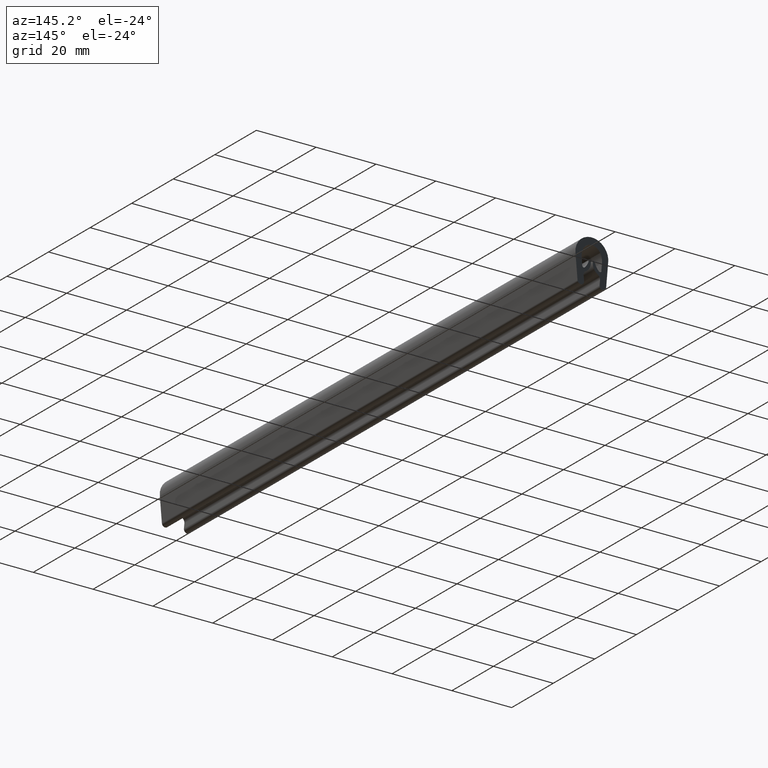
[diagram: clean part render]
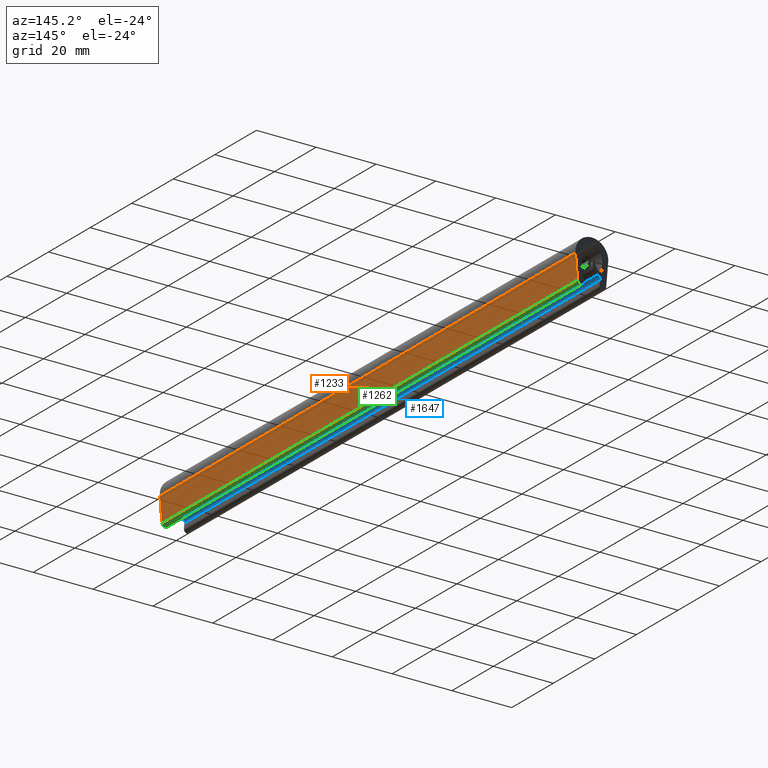
[diagram: same view with three faces highlighted in distinct colors, each labeled with its STEP entity id]
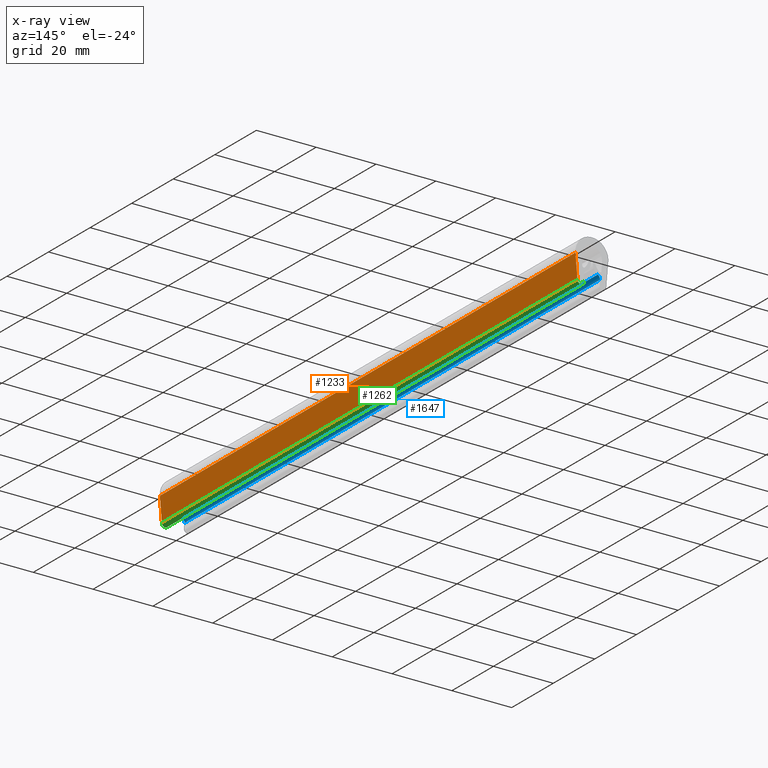
[diagram: x-ray of the same camera — body ghosted, the three highlighted faces saturated]
A machine part, auxiliary view with three faces highlighted in distinct colors.
The next image is the same camera in x-ray (body ghosted, the three faces saturated) — at least one of them is partly hidden behind the body in this view.
Their STEP definitions:

[orange] entity #1233 — the highlighted face is a freeform B-spline surface patch.
#755=CARTESIAN_POINT('',(4.782680216882080,0.0,-13.994669246972141));
#756=VERTEX_POINT('',#755);
#770=CARTESIAN_POINT('',(5.474783945414970,0.0,-5.967107423224420));
#771=VERTEX_POINT('',#770);
#772=CARTESIAN_POINT('',(4.782680216882080,0.0,-13.994669246972141));
#773=CARTESIAN_POINT('',(5.474783945414970,0.0,-5.967107423224420));
#774=QUASI_UNIFORM_CURVE('',1,(#772,#773),.UNSPECIFIED.,.F.,.U.);
#775=EDGE_CURVE('',#756,#771,#774,.T.);
#872=CARTESIAN_POINT('',(5.474783945414970,200.0,-5.967107423224420));
#873=VERTEX_POINT('',#872);
#894=CARTESIAN_POINT('',(4.782680216882080,200.0,-13.994669246972141));
#895=VERTEX_POINT('',#894);
#896=CARTESIAN_POINT('',(4.782680216882080,200.0,-13.994669246972141));
#897=CARTESIAN_POINT('',(5.474783945414970,200.0,-5.967107423224420));
#898=QUASI_UNIFORM_CURVE('',1,(#896,#897),.UNSPECIFIED.,.F.,.U.);
#899=EDGE_CURVE('',#895,#873,#898,.T.);
#1208=CARTESIAN_POINT('',(5.474783945414970,200.0,-5.967107423224420));
#1209=CARTESIAN_POINT('',(5.474783945414970,0.0,-5.967107423224420));
#1210=QUASI_UNIFORM_CURVE('',1,(#1208,#1209),.UNSPECIFIED.,.F.,.U.);
#1211=EDGE_CURVE('',#873,#771,#1210,.T.);
#1218=CARTESIAN_POINT('',(5.509354525313753,-9.989999612361183,-5.566130725687193));
#1219=CARTESIAN_POINT('',(4.748109618419628,-9.989999612361183,-14.395646159825359));
#1220=CARTESIAN_POINT('',(5.509354525313753,209.990004976779200,-5.566130725687193));
#1221=CARTESIAN_POINT('',(4.748109618419628,209.990004976779200,-14.395646159825359));
#1222=B_SPLINE_SURFACE_WITH_KNOTS('',1,1,((#1218,#1220),(#1219,#1221)),.UNSPECIFIED.,.F.,.F.,.U.,(2,2),(2,2),(0.0,8.862270398151722),(0.0,219.980004589140410),.UNSPECIFIED.);
#1223=ORIENTED_EDGE('',*,*,#775,.F.);
#1224=CARTESIAN_POINT('',(4.782680216882080,200.0,-13.994669246972141));
#1225=CARTESIAN_POINT('',(4.782680216882080,0.0,-13.994669246972141));
#1226=QUASI_UNIFORM_CURVE('',1,(#1224,#1225),.UNSPECIFIED.,.F.,.U.);
#1227=EDGE_CURVE('',#895,#756,#1226,.T.);
#1228=ORIENTED_EDGE('',*,*,#1227,.F.);
#1229=ORIENTED_EDGE('',*,*,#899,.T.);
#1230=ORIENTED_EDGE('',*,*,#1211,.T.);
#1231=EDGE_LOOP('',(#1223,#1228,#1229,#1230));
#1232=FACE_OUTER_BOUND('',#1231,.T.);
#1233=ADVANCED_FACE('',(#1232),#1222,.T.);

[blue] entity #1647 — the highlighted face is a freeform B-spline surface patch.
#538=CARTESIAN_POINT('',(-2.740059698185580,0.0,-12.079526665262099));
#539=VERTEX_POINT('',#538);
#545=CARTESIAN_POINT('',(-1.991316289292205,0.0,-10.649155255165841));
#546=VERTEX_POINT('',#545);
#547=CARTESIAN_POINT('',(-1.991316289292206,0.0,-10.649155255165841));
#548=CARTESIAN_POINT('',(-2.822342373303853,0.0,-11.125300278592301));
#549=CARTESIAN_POINT('',(-2.740059698185583,0.0,-12.079526665262099));
#557=(BOUNDED_CURVE()B_SPLINE_CURVE(2,(#547,#548,#549),.UNSPECIFIED.,.F.,.U.)CURVE()GEOMETRIC_REPRESENTATION_ITEM()QUASI_UNIFORM_CURVE()RATIONAL_B_SPLINE_CURVE((1.0,0.842840497419817,1.0))REPRESENTATION_ITEM(''));
#558=EDGE_CURVE('',#546,#539,#557,.T.);
#842=CARTESIAN_POINT('',(-2.740059698185580,200.0,-12.079526665262099));
#843=VERTEX_POINT('',#842);
#1096=CARTESIAN_POINT('',(-1.991316289292205,200.0,-10.649155255165841));
#1097=VERTEX_POINT('',#1096);
#1111=CARTESIAN_POINT('',(-1.991316289292206,200.0,-10.649155255165841));
#1112=CARTESIAN_POINT('',(-2.822342373303853,200.000000000000030,-11.125300278592301));
#1113=CARTESIAN_POINT('',(-2.740059698185583,200.0,-12.079526665262099));
#1121=(BOUNDED_CURVE()B_SPLINE_CURVE(2,(#1111,#1112,#1113),.UNSPECIFIED.,.F.,.U.)CURVE()GEOMETRIC_REPRESENTATION_ITEM()QUASI_UNIFORM_CURVE()RATIONAL_B_SPLINE_CURVE((1.0,0.842840497419817,1.0))REPRESENTATION_ITEM(''));
#1122=EDGE_CURVE('',#1097,#843,#1121,.T.);
#1613=CARTESIAN_POINT('',(-1.991316289292205,200.0,-10.649155255165841));
#1614=CARTESIAN_POINT('',(-1.991316289292205,0.0,-10.649155255165841));
#1615=QUASI_UNIFORM_CURVE('',1,(#1613,#1614),.UNSPECIFIED.,.F.,.U.);
#1616=EDGE_CURVE('',#1097,#546,#1615,.T.);
#1623=CARTESIAN_POINT('',(-2.733016236712766,205.0,-12.144591191173850));
#1624=CARTESIAN_POINT('',(-2.733016236712766,-5.125000000000000,-12.144591191173850));
#1625=CARTESIAN_POINT('',(-2.870530893247873,205.0,-11.089881580391559));
#1626=CARTESIAN_POINT('',(-2.870530893247873,-5.124999999999999,-11.089881580391559));
#1627=CARTESIAN_POINT('',(-1.920710724713474,205.000000000000090,-10.611170507526323));
#1628=CARTESIAN_POINT('',(-1.920710724713474,-5.125000000000001,-10.611170507526323));
#1636=(BOUNDED_SURFACE()B_SPLINE_SURFACE(1,2,((#1623,#1625,#1627),(#1624,#1626,#1628)),.UNSPECIFIED.,.F.,.F.,.U.)B_SPLINE_SURFACE_WITH_KNOTS((2,2),(3,3),(0.0,210.125000000000110),(0.0,0.995198735329509),.UNSPECIFIED.)GEOMETRIC_REPRESENTATION_ITEM()RATIONAL_B_SPLINE_SURFACE(((1.0,0.815007998950828,0.998223608882078),(1.0,0.815007998950828,0.998223608882078)))REPRESENTATION_ITEM('')SURFACE());
#1637=ORIENTED_EDGE('',*,*,#558,.T.);
#1638=CARTESIAN_POINT('',(-2.740059698185580,200.0,-12.079526665262099));
#1639=CARTESIAN_POINT('',(-2.740059698185580,0.0,-12.079526665262099));
#1640=QUASI_UNIFORM_CURVE('',1,(#1638,#1639),.UNSPECIFIED.,.F.,.U.);
#1641=EDGE_CURVE('',#843,#539,#1640,.T.);
#1642=ORIENTED_EDGE('',*,*,#1641,.F.);
#1643=ORIENTED_EDGE('',*,*,#1122,.F.);
#1644=ORIENTED_EDGE('',*,*,#1616,.T.);
#1645=EDGE_LOOP('',(#1637,#1642,#1643,#1644));
#1646=FACE_OUTER_BOUND('',#1645,.T.);
#1647=ADVANCED_FACE('',(#1646),#1636,.F.);

[green] entity #1262 — the highlighted face is a freeform B-spline surface patch.
#748=CARTESIAN_POINT('',(2.591210996217995,0.0,-13.805714575838561));
#749=VERTEX_POINT('',#748);
#755=CARTESIAN_POINT('',(4.782680216882080,0.0,-13.994669246972141));
#756=VERTEX_POINT('',#755);
#757=CARTESIAN_POINT('',(2.591210996217995,0.0,-13.805714575838561));
#758=CARTESIAN_POINT('',(2.571869826704712,0.0,-14.020974690863040));
#759=CARTESIAN_POINT('',(2.654876704590588,0.0,-14.406520841131149));
#760=CARTESIAN_POINT('',(3.021233439837232,0.0,-14.821012643286419));
#761=CARTESIAN_POINT('',(3.461972301721198,0.0,-15.009880067122440));
#762=CARTESIAN_POINT('',(3.902187893317477,0.0,-15.004396493395470));
#763=CARTESIAN_POINT('',(4.292234489801751,0.0,-14.848429458374270));
#764=CARTESIAN_POINT('',(4.641819105165943,0.0,-14.523949217136041));
#765=CARTESIAN_POINT('',(4.766196751668490,0.0,-14.192032299507231));
#766=CARTESIAN_POINT('',(4.782680216882080,0.0,-13.994669246972141));
#767=B_SPLINE_CURVE_WITH_KNOTS('',3,(#757,#758,#759,#760,#761,#762,#763,#764,#765,#766),.UNSPECIFIED.,.F.,.U.,(4,1,1,1,1,1,1,4),(0.000001096677991,0.647919302917975,1.133915035461568,1.619741635772815,2.051740260941057,2.429597431810299,2.861573312885080,3.455485608318431),.UNSPECIFIED.);
#768=EDGE_CURVE('',#749,#756,#767,.T.);
#894=CARTESIAN_POINT('',(4.782680216882080,200.0,-13.994669246972141));
#895=VERTEX_POINT('',#894);
#901=CARTESIAN_POINT('',(2.591210996217995,200.0,-13.805714575838561));
#902=VERTEX_POINT('',#901);
#903=CARTESIAN_POINT('',(2.591210996217995,200.0,-13.805714575838561));
#904=CARTESIAN_POINT('',(2.571869818892785,199.999999999999800,-14.020974728668760));
#905=CARTESIAN_POINT('',(2.654876724027825,200.000000000000400,-14.406520748166241));
#906=CARTESIAN_POINT('',(3.021233418755069,199.999999999999490,-14.821012739823219));
#907=CARTESIAN_POINT('',(3.461972305746234,200.000000000000710,-15.009880053270839));
#908=CARTESIAN_POINT('',(3.902187943283022,199.999999999999090,-15.004396585079490));
#909=CARTESIAN_POINT('',(4.292234480013865,200.000000000000510,-14.848429353241359));
#910=CARTESIAN_POINT('',(4.641819106702100,199.999999999999600,-14.523949314552150));
#911=CARTESIAN_POINT('',(4.766196751385925,200.0,-14.192032263848960));
#912=CARTESIAN_POINT('',(4.782680216882080,200.0,-13.994669246972141));
#913=B_SPLINE_CURVE_WITH_KNOTS('',3,(#903,#904,#905,#906,#907,#908,#909,#910,#911,#912),.UNSPECIFIED.,.F.,.U.,(4,1,1,1,1,1,1,4),(0.000001096677991,0.647919302917975,1.133915035461568,1.619741635772815,2.051740260941057,2.429597431810299,2.861573312885080,3.455485608318431),.UNSPECIFIED.);
#914=EDGE_CURVE('',#902,#895,#913,.T.);
#1224=CARTESIAN_POINT('',(4.782680216882080,200.0,-13.994669246972141));
#1225=CARTESIAN_POINT('',(4.782680216882080,0.0,-13.994669246972141));
#1226=QUASI_UNIFORM_CURVE('',1,(#1224,#1225),.UNSPECIFIED.,.F.,.U.);
#1227=EDGE_CURVE('',#895,#756,#1226,.T.);
#1234=CARTESIAN_POINT('',(4.785757398443336,205.0,-13.946799071030240));
#1235=CARTESIAN_POINT('',(4.785757398443336,-5.125000000000000,-13.946799071030240));
#1236=CARTESIAN_POINT('',(4.736220499709242,205.000000000000090,-15.114871093830324));
#1237=CARTESIAN_POINT('',(4.736220499709242,-5.125000000000000,-15.114871093830324));
#1238=CARTESIAN_POINT('',(3.573351322010256,205.0,-14.994117500334459));
#1239=CARTESIAN_POINT('',(3.573351322010256,-5.125000000000000,-14.994117500334459));
#1240=CARTESIAN_POINT('',(2.410482144311269,205.000000000000090,-14.873363906838582));
#1241=CARTESIAN_POINT('',(2.410482144311269,-5.125000000000000,-14.873363906838582));
#1242=CARTESIAN_POINT('',(2.602001972982606,205.0,-13.720035545091511));
#1243=CARTESIAN_POINT('',(2.602001972982606,-5.125000000000000,-13.720035545091511));
#1251=(BOUNDED_SURFACE()B_SPLINE_SURFACE(1,2,((#1234,#1236,#1238,#1240,#1242),(#1235,#1237,#1239,#1241,#1243)),.UNSPECIFIED.,.F.,.F.,.U.)B_SPLINE_SURFACE_WITH_KNOTS((2,2),(3,2,3),(0.0,210.125000000000000),(0.0,1.0,2.0),.UNSPECIFIED.)GEOMETRIC_REPRESENTATION_ITEM()RATIONAL_B_SPLINE_SURFACE(((1.0,0.685182990326359,1.0,0.685182990326359,1.0),(1.0,0.685182990326359,1.0,0.685182990326359,1.0)))REPRESENTATION_ITEM('')SURFACE());
#1252=ORIENTED_EDGE('',*,*,#768,.F.);
#1253=CARTESIAN_POINT('',(2.591210996217995,200.0,-13.805714575838561));
#1254=CARTESIAN_POINT('',(2.591210996217995,0.0,-13.805714575838561));
#1255=QUASI_UNIFORM_CURVE('',1,(#1253,#1254),.UNSPECIFIED.,.F.,.U.);
#1256=EDGE_CURVE('',#902,#749,#1255,.T.);
#1257=ORIENTED_EDGE('',*,*,#1256,.F.);
#1258=ORIENTED_EDGE('',*,*,#914,.T.);
#1259=ORIENTED_EDGE('',*,*,#1227,.T.);
#1260=EDGE_LOOP('',(#1252,#1257,#1258,#1259));
#1261=FACE_OUTER_BOUND('',#1260,.T.);
#1262=ADVANCED_FACE('',(#1261),#1251,.T.);